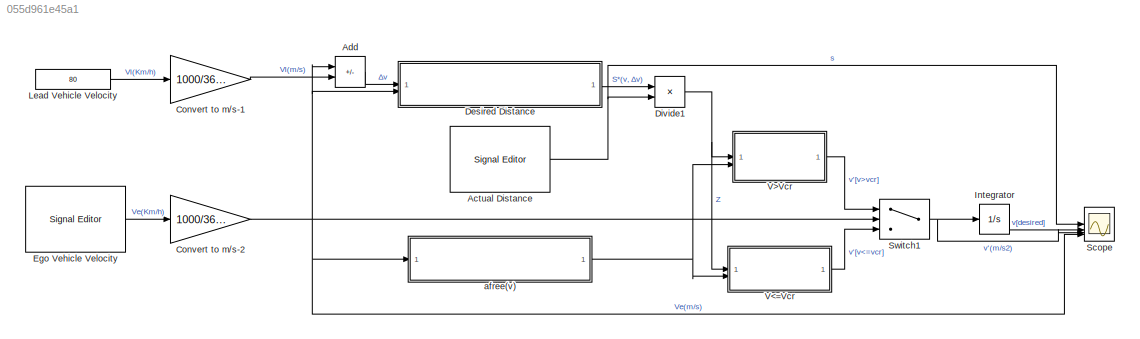
MODEL slx_055d961e45a1
KIND model
CONFIG AbsTol = auto
CONFIG EnableMultiTasking = off
CONFIG FixedStep = auto
CONFIG MaxStep = 0.01
CONFIG MinStep = auto
CONFIG RelTol = 1e-3
CONFIG SampleTimeConstraint = Unconstrained
CONFIG SolverName = VariableStepAuto
CONFIG StartTime = 0.0
CONFIG StopTime = 80.0
BLOCK [Reference] Actual Distance  REF=SignalEditorBlockLib/Signal Editor
  LibrarySourceBlock = simulink/Sources/Signal Editor
  SourceBlock = SignalEditorBlockLib/Signal Editor
  SourceType = SignalEditor
  UserDataPersistent = on
BLOCK [Sum] Add
  IconShape = rectangular
  Inputs = +-
BLOCK [Gain] Convert to m//s-1
  Gain = 1000/3600
BLOCK [Gain] Convert to m//s-2
  Gain = 1000/3600
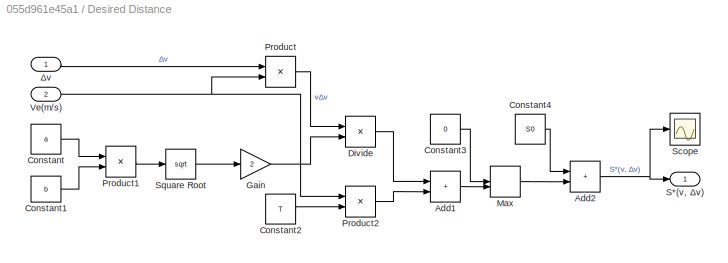
BLOCK [SubSystem] Desired Distance
BLOCK [Sum] Desired Distance/Add1
  IconShape = rectangular
BLOCK [Sum] Desired Distance/Add2
  IconShape = rectangular
BLOCK [Constant] Desired Distance/Constant
  Value = a
BLOCK [Constant] Desired Distance/Constant1
  Value = b
BLOCK [Constant] Desired Distance/Constant2
  Value = T
BLOCK [Constant] Desired Distance/Constant3
  Value = 0
BLOCK [Constant] Desired Distance/Constant4
  Value = S0
BLOCK [Product] Desired Distance/Divide
  Inputs = */
BLOCK [Gain] Desired Distance/Gain
  Gain = 2
BLOCK [MinMax] Desired Distance/Max
  Function = max
  Inputs = 2
BLOCK [Product] Desired Distance/Product
BLOCK [Product] Desired Distance/Product1
BLOCK [Product] Desired Distance/Product2
BLOCK [Outport] Desired Distance/S*(v, Δv)
BLOCK [Scope] Desired Distance/Scope
  Floating = off
  NumInputPorts = 1
  ScopeSpecificationString = Simulink.scopes.TimeScopeBlockCfg('CurrentConfiguration', extmgr.ConfigurationSet(extmgr.Configuration('Core','General UI',true),extmgr.Configuration('Core','Source UI',true),extmgr.Configuration('Sources','WiredSimulink',true,'DataLoggingVariableName','ScopeData1'),extmgr.Configuration('Visuals','Time Domain',true,'SerializedDisplays',{struct('MinYLimReal','-0.16878','MaxYLimReal','38.18791','YLa...<+1587ch>
BLOCK [Sqrt] Desired Distance/Square Root
BLOCK [Inport] Desired Distance/Ve(m//s)
  Port = 2
BLOCK [Inport] Desired Distance/Δv
BLOCK [Product] Divide1
  Inputs = */
BLOCK [Reference] Ego Vehicle Velocity  REF=SignalEditorBlockLib/Signal Editor
  LibrarySourceBlock = simulink/Sources/Signal Editor
  SourceBlock = SignalEditorBlockLib/Signal Editor
  SourceType = SignalEditor
  UserDataPersistent = on
BLOCK [Integrator] Integrator
BLOCK [Constant] Lead Vehicle Velocity
  Value = 80
BLOCK [Scope] Scope
  Floating = off
  NumInputPorts = 4
  ScopeSpecificationString = Simulink.scopes.TimeScopeBlockCfg('CurrentConfiguration', extmgr.ConfigurationSet(extmgr.Configuration('Core','General UI',true),extmgr.Configuration('Core','Source UI',true),extmgr.Configuration('Sources','WiredSimulink',true,'DataLoggingVariableName','ScopeData1'),extmgr.Configuration('Visuals','Time Domain',true,'InputProcessing','FrameProcessing','SerializedDisplays',{struct('MinYLimReal','2.5...<+4029ch>
BLOCK [Switch] Switch1
  Criteria = u2 > Threshold
  InputSameDT = off
  SaturateOnIntegerOverflow = off
  Threshold = Cs
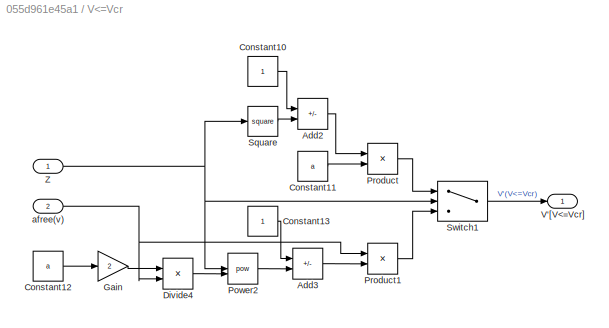
BLOCK [SubSystem] V<=Vcr
BLOCK [Sum] V<=Vcr/Add2
  IconShape = rectangular
  Inputs = +-
BLOCK [Sum] V<=Vcr/Add3
  IconShape = rectangular
  Inputs = +-
BLOCK [Constant] V<=Vcr/Constant10
BLOCK [Constant] V<=Vcr/Constant11
  Value = a
BLOCK [Constant] V<=Vcr/Constant12
  Value = a
BLOCK [Constant] V<=Vcr/Constant13
BLOCK [Product] V<=Vcr/Divide4
  Inputs = */
BLOCK [Gain] V<=Vcr/Gain
  Gain = 2
BLOCK [Math] V<=Vcr/Power2
  Operator = pow
BLOCK [Product] V<=Vcr/Product
BLOCK [Product] V<=Vcr/Product1
BLOCK [Math] V<=Vcr/Square
  Operator = square
BLOCK [Switch] V<=Vcr/Switch1
  InputSameDT = off
  SaturateOnIntegerOverflow = off
  Threshold = 1
BLOCK [Outport] V<=Vcr/V'[V<=Vcr]
BLOCK [Inport] V<=Vcr/Z
BLOCK [Inport] V<=Vcr/afree(v)
  Port = 2
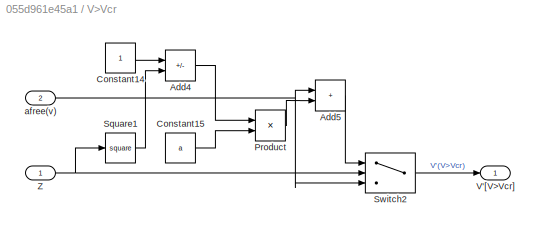
BLOCK [SubSystem] V>Vcr
BLOCK [Sum] V>Vcr/Add4
  IconShape = rectangular
  Inputs = +-
BLOCK [Sum] V>Vcr/Add5
  IconShape = rectangular
BLOCK [Constant] V>Vcr/Constant14
BLOCK [Constant] V>Vcr/Constant15
  Value = a
BLOCK [Product] V>Vcr/Product
BLOCK [Math] V>Vcr/Square1
  Operator = square
BLOCK [Switch] V>Vcr/Switch2
  InputSameDT = off
  SaturateOnIntegerOverflow = off
  Threshold = 1
BLOCK [Outport] V>Vcr/V'[V>Vcr]
BLOCK [Inport] V>Vcr/Z
BLOCK [Inport] V>Vcr/afree(v)
  Port = 2
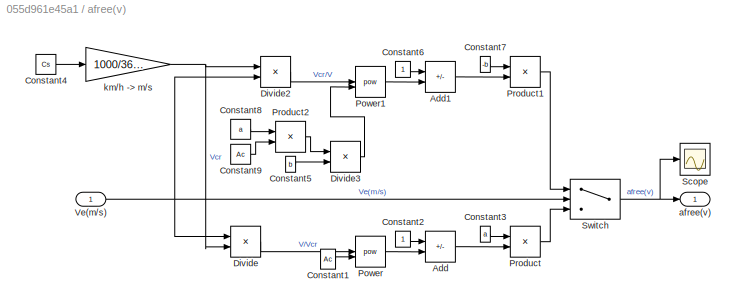
BLOCK [SubSystem] afree(v)
BLOCK [Sum] afree(v)/Add
  IconShape = rectangular
  Inputs = +-
BLOCK [Sum] afree(v)/Add1
  IconShape = rectangular
  Inputs = +-
BLOCK [Constant] afree(v)/Constant1
  Value = Ac
BLOCK [Constant] afree(v)/Constant2
BLOCK [Constant] afree(v)/Constant3
  Value = a
BLOCK [Constant] afree(v)/Constant4
  Value = Cs
BLOCK [Constant] afree(v)/Constant5
  Value = b
BLOCK [Constant] afree(v)/Constant6
BLOCK [Constant] afree(v)/Constant7
  Value = -b
BLOCK [Constant] afree(v)/Constant8
  Value = a
BLOCK [Constant] afree(v)/Constant9
  Value = Ac
BLOCK [Product] afree(v)/Divide
  Inputs = */
BLOCK [Product] afree(v)/Divide2
  Inputs = */
BLOCK [Product] afree(v)/Divide3
  Inputs = */
BLOCK [Math] afree(v)/Power
  Operator = pow
BLOCK [Math] afree(v)/Power1
  Operator = pow
BLOCK [Product] afree(v)/Product
BLOCK [Product] afree(v)/Product1
BLOCK [Product] afree(v)/Product2
BLOCK [Scope] afree(v)/Scope
  Floating = off
  NumInputPorts = 1
  ScopeSpecificationString = Simulink.scopes.TimeScopeBlockCfg('CurrentConfiguration', extmgr.ConfigurationSet(extmgr.Configuration('Core','General UI',true),extmgr.Configuration('Core','Source UI',true),extmgr.Configuration('Sources','WiredSimulink',true),extmgr.Configuration('Visuals','Time Domain',true,'SerializedDisplays',{struct('MinYLimReal','0.56','MaxYLimReal','2.16','YLabelReal','','MinYLimMag','0.56','MaxYLimMag','2...<+1420ch>
BLOCK [Switch] afree(v)/Switch
  Criteria = u2 > Threshold
  InputSameDT = off
  SaturateOnIntegerOverflow = off
  Threshold = Cs * 1000/3600
BLOCK [Inport] afree(v)/Ve(m//s)
BLOCK [Outport] afree(v)/afree(v)
BLOCK [Gain] afree(v)/km//h -> m//s
  Gain = 1000/3600
NET Actual Distance:1 -> Divide1:2, Scope:1
LINE Add:1 -> Desired Distance:1
LINE Convert to m//s-1:1 -> Add:2
NET Convert to m//s-2:1 -> Add:1, Desired Distance:2, Scope:4, Switch1:2, afree(v):1
LINE Desired Distance/Add1:1 -> Desired Distance/Max:2
NET Desired Distance/Add2:1 -> Desired Distance/S*(v, Δv):1, Desired Distance/Scope:1
LINE Desired Distance/Constant1:1 -> Desired Distance/Product1:2
LINE Desired Distance/Constant2:1 -> Desired Distance/Product2:2
LINE Desired Distance/Constant3:1 -> Desired Distance/Max:1
LINE Desired Distance/Constant4:1 -> Desired Distance/Add2:1
LINE Desired Distance/Constant:1 -> Desired Distance/Product1:1
LINE Desired Distance/Divide:1 -> Desired Distance/Add1:1
LINE Desired Distance/Gain:1 -> Desired Distance/Divide:2
LINE Desired Distance/Max:1 -> Desired Distance/Add2:2
LINE Desired Distance/Product1:1 -> Desired Distance/Square Root:1
LINE Desired Distance/Product2:1 -> Desired Distance/Add1:2
LINE Desired Distance/Product:1 -> Desired Distance/Divide:1
LINE Desired Distance/Square Root:1 -> Desired Distance/Gain:1
NET Desired Distance/Ve(m//s):1 -> Desired Distance/Product2:1, Desired Distance/Product:2
LINE Desired Distance/Δv:1 -> Desired Distance/Product:1
LINE Desired Distance:1 -> Divide1:1
NET Divide1:1 -> V<=Vcr:1, V>Vcr:1
LINE Ego Vehicle Velocity:1 -> Convert to m//s-2:1
LINE Integrator:1 -> Scope:2
LINE Lead Vehicle Velocity:1 -> Convert to m//s-1:1
NET Switch1:1 -> Integrator:1, Scope:3
LINE V<=Vcr/Add2:1 -> V<=Vcr/Product:1
LINE V<=Vcr/Add3:1 -> V<=Vcr/Product1:2
LINE V<=Vcr/Constant10:1 -> V<=Vcr/Add2:1
LINE V<=Vcr/Constant11:1 -> V<=Vcr/Product:2
LINE V<=Vcr/Constant12:1 -> V<=Vcr/Gain:1
LINE V<=Vcr/Constant13:1 -> V<=Vcr/Add3:1
LINE V<=Vcr/Divide4:1 -> V<=Vcr/Power2:2
LINE V<=Vcr/Gain:1 -> V<=Vcr/Divide4:1
LINE V<=Vcr/Power2:1 -> V<=Vcr/Add3:2
LINE V<=Vcr/Product1:1 -> V<=Vcr/Switch1:3
LINE V<=Vcr/Product:1 -> V<=Vcr/Switch1:1
LINE V<=Vcr/Square:1 -> V<=Vcr/Add2:2
LINE V<=Vcr/Switch1:1 -> V<=Vcr/V'[V<=Vcr]:1
NET V<=Vcr/Z:1 -> V<=Vcr/Power2:1, V<=Vcr/Square:1, V<=Vcr/Switch1:2
NET V<=Vcr/afree(v):1 -> V<=Vcr/Divide4:2, V<=Vcr/Product1:1
LINE V<=Vcr:1 -> Switch1:3
LINE V>Vcr/Add4:1 -> V>Vcr/Product:1
LINE V>Vcr/Add5:1 -> V>Vcr/Switch2:1
LINE V>Vcr/Constant14:1 -> V>Vcr/Add4:1
LINE V>Vcr/Constant15:1 -> V>Vcr/Product:2
LINE V>Vcr/Product:1 -> V>Vcr/Add5:2
LINE V>Vcr/Square1:1 -> V>Vcr/Add4:2
LINE V>Vcr/Switch2:1 -> V>Vcr/V'[V>Vcr]:1
NET V>Vcr/Z:1 -> V>Vcr/Square1:1, V>Vcr/Switch2:2
NET V>Vcr/afree(v):1 -> V>Vcr/Add5:1, V>Vcr/Switch2:3
LINE V>Vcr:1 -> Switch1:1
LINE afree(v)/Add1:1 -> afree(v)/Product1:2
LINE afree(v)/Add:1 -> afree(v)/Product:2
LINE afree(v)/Constant1:1 -> afree(v)/Power:2
LINE afree(v)/Constant2:1 -> afree(v)/Add:1
LINE afree(v)/Constant3:1 -> afree(v)/Product:1
LINE afree(v)/Constant4:1 -> afree(v)/km//h -> m//s:1
LINE afree(v)/Constant5:1 -> afree(v)/Divide3:2
LINE afree(v)/Constant6:1 -> afree(v)/Add1:1
LINE afree(v)/Constant7:1 -> afree(v)/Product1:1
LINE afree(v)/Constant8:1 -> afree(v)/Product2:1
LINE afree(v)/Constant9:1 -> afree(v)/Product2:2
LINE afree(v)/Divide2:1 -> afree(v)/Power1:1
LINE afree(v)/Divide3:1 -> afree(v)/Power1:2
LINE afree(v)/Divide:1 -> afree(v)/Power:1
LINE afree(v)/Power1:1 -> afree(v)/Add1:2
LINE afree(v)/Power:1 -> afree(v)/Add:2
LINE afree(v)/Product1:1 -> afree(v)/Switch:1
LINE afree(v)/Product2:1 -> afree(v)/Divide3:1
LINE afree(v)/Product:1 -> afree(v)/Switch:3
NET afree(v)/Switch:1 -> afree(v)/Scope:1, afree(v)/afree(v):1
NET afree(v)/Ve(m//s):1 -> afree(v)/Divide2:2, afree(v)/Divide:1, afree(v)/Switch:2
NET afree(v)/km//h -> m//s:1 -> afree(v)/Divide2:1, afree(v)/Divide:2
NET afree(v):1 -> V<=Vcr:2, V>Vcr:2
note: NET lines group one-source signal fan-out (src -> all destinations, sorted); 1:1 wires keep LINE
